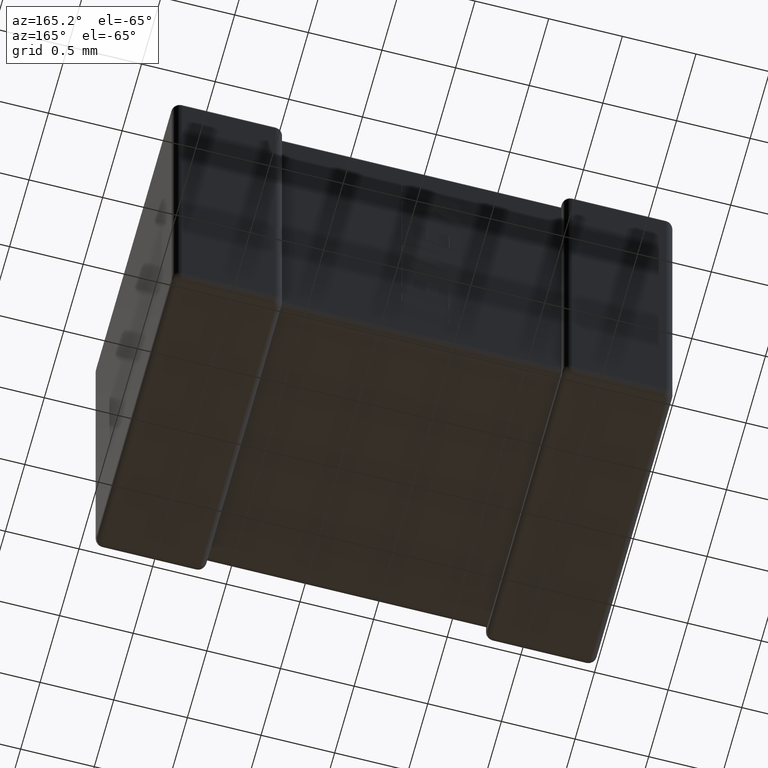
[diagram: clean part render]
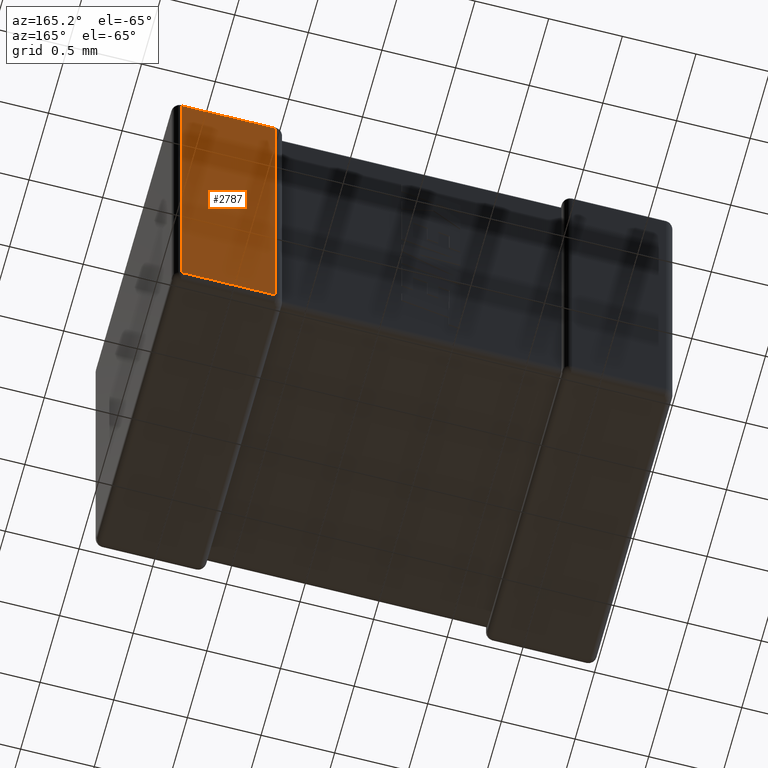
[diagram: same view with one face highlighted and labeled with its STEP entity id]
A machine part, auxiliary view. The second image highlights one B-rep face of the part: STEP entity #2787.
In plain terms, the highlighted planar face has unit normal (0, -1, 0).
Its self-contained STEP definition (entity closure, byte-faithful):
#113 = LINE ( 'NONE', #1143, #1976 ) ;
#120 = DIRECTION ( 'NONE',  ( 1.000000000000000000, -0.000000000000000000, -0.000000000000000000 ) ) ;
#240 = VECTOR ( 'NONE', #120, 1000.000000000000000 ) ;
#445 = DIRECTION ( 'NONE',  ( -1.000000000000000000, 0.000000000000000000, 0.000000000000000000 ) ) ;
#507 = ORIENTED_EDGE ( 'NONE', *, *, #4375, .T. ) ;
#849 = DIRECTION ( 'NONE',  ( -0.000000000000000000, -0.000000000000000000, -1.000000000000000000 ) ) ;
#905 = VERTEX_POINT ( 'NONE', #1495 ) ;
#907 = CARTESIAN_POINT ( 'NONE',  ( 3.400000000000000355, 2.050000000000000266, 0.000000000000000000 ) ) ;
#956 = DIRECTION ( 'NONE',  ( 0.000000000000000000, -1.000000000000000000, 0.000000000000000000 ) ) ;
#963 = EDGE_CURVE ( 'NONE', #1590, #2226, #1567, .T. ) ;
#1143 = CARTESIAN_POINT ( 'NONE',  ( 3.400000000000000355, 2.050000000000000266, -2.643839999999999968 ) ) ;
#1172 = VECTOR ( 'NONE', #3955, 1000.000000000000000 ) ;
#1236 = AXIS2_PLACEMENT_3D ( 'NONE', #907, #956, #2348 ) ;
#1338 = EDGE_CURVE ( 'NONE', #4278, #1590, #3361, .T. ) ;
#1495 = CARTESIAN_POINT ( 'NONE',  ( 2.706160000000000565, 2.050000000000000266, -2.643839999999999968 ) ) ;
#1567 = LINE ( 'NONE', #4518, #2356 ) ;
#1578 = CARTESIAN_POINT ( 'NONE',  ( 3.343840000000000146, 2.050000000000000266, -0.05616000000000000159 ) ) ;
#1590 = VERTEX_POINT ( 'NONE', #1578 ) ;
#1976 = VECTOR ( 'NONE', #445, 1000.000000000000000 ) ;
#2226 = VERTEX_POINT ( 'NONE', #4315 ) ;
#2299 = EDGE_CURVE ( 'NONE', #2226, #905, #113, .T. ) ;
#2348 = DIRECTION ( 'NONE',  ( 0.000000000000000000, -0.000000000000000000, -1.000000000000000000 ) ) ;
#2356 = VECTOR ( 'NONE', #849, 1000.000000000000000 ) ;
#2430 = LINE ( 'NONE', #2499, #1172 ) ;
#2499 = CARTESIAN_POINT ( 'NONE',  ( 2.706160000000000565, 2.050000000000000266, 0.000000000000000000 ) ) ;
#2661 = EDGE_LOOP ( 'NONE', ( #3922, #4257, #4300, #507 ) ) ;
#2729 = FACE_OUTER_BOUND ( 'NONE', #2661, .T. ) ;
#2787 = ADVANCED_FACE ( 'NONE', ( #2729 ), #4525, .F. ) ;
#3361 = LINE ( 'NONE', #3432, #240 ) ;
#3432 = CARTESIAN_POINT ( 'NONE',  ( 3.400000000000000355, 2.050000000000000266, -0.05616000000000000159 ) ) ;
#3461 = CARTESIAN_POINT ( 'NONE',  ( 2.706160000000000565, 2.050000000000000266, -0.05616000000000000159 ) ) ;
#3922 = ORIENTED_EDGE ( 'NONE', *, *, #1338, .T. ) ;
#3955 = DIRECTION ( 'NONE',  ( -0.000000000000000000, 0.000000000000000000, 1.000000000000000000 ) ) ;
#4257 = ORIENTED_EDGE ( 'NONE', *, *, #963, .T. ) ;
#4278 = VERTEX_POINT ( 'NONE', #3461 ) ;
#4300 = ORIENTED_EDGE ( 'NONE', *, *, #2299, .T. ) ;
#4315 = CARTESIAN_POINT ( 'NONE',  ( 3.343840000000000146, 2.050000000000000266, -2.643839999999999968 ) ) ;
#4375 = EDGE_CURVE ( 'NONE', #905, #4278, #2430, .T. ) ;
#4518 = CARTESIAN_POINT ( 'NONE',  ( 3.343840000000000146, 2.050000000000000266, 0.000000000000000000 ) ) ;
#4525 = PLANE ( 'NONE',  #1236 ) ;